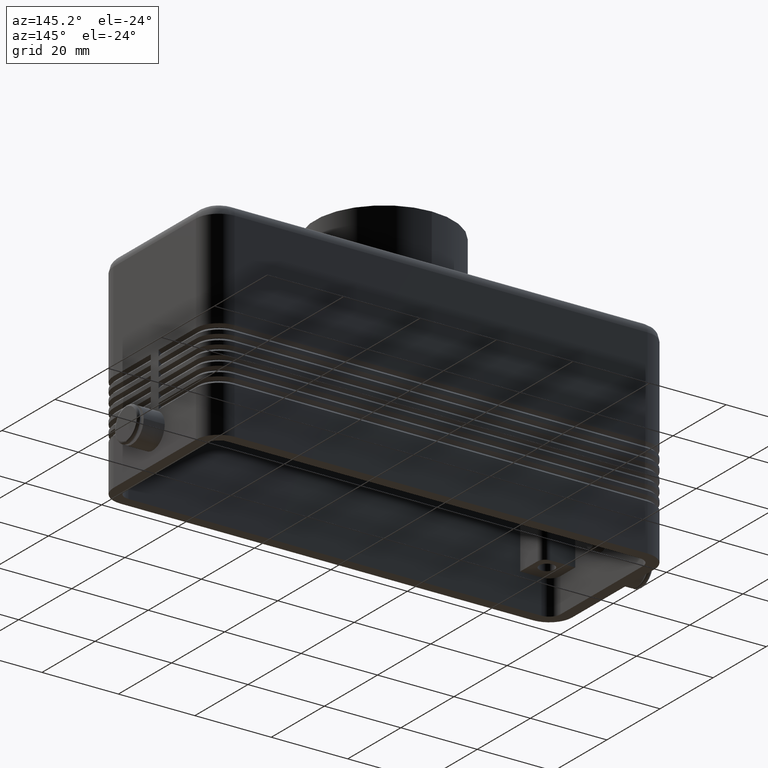
[diagram: clean part render]
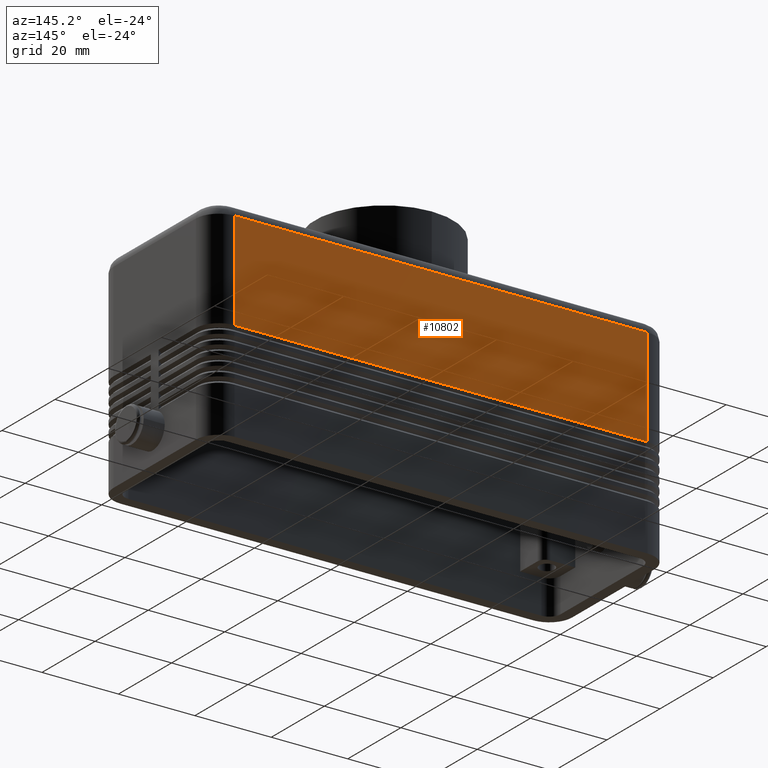
[diagram: same view with one face highlighted and labeled with its STEP entity id]
A machine part, auxiliary view. The second image highlights one B-rep face of the part: STEP entity #10802.
In plain terms, the highlighted planar face has unit normal (0, 1, 0).
Its self-contained STEP definition (entity closure, byte-faithful):
#2358=CARTESIAN_POINT('',(-53.999999999999986,21.500000000000000,52.000000000000014));
#2359=VERTEX_POINT('',#2358);
#2367=CARTESIAN_POINT('',(-53.999999999999986,21.500000000000000,26.250000000000004));
#2368=VERTEX_POINT('',#2367);
#2369=CARTESIAN_POINT('',(-53.999999999999986,21.500000000000000,52.000000000000014));
#2370=DIRECTION('',(0.0,0.0,-1.0));
#2371=VECTOR('',#2370,25.750000000000011);
#2372=LINE('',#2369,#2371);
#2373=EDGE_CURVE('',#2359,#2368,#2372,.T.);
#3191=CARTESIAN_POINT('',(54.0,21.500000000000000,26.250000000000021));
#3192=VERTEX_POINT('',#3191);
#4656=CARTESIAN_POINT('',(53.999999999999993,21.500000000000000,51.999999999999993));
#4657=VERTEX_POINT('',#4656);
#4658=CARTESIAN_POINT('',(54.0,21.500000000000000,26.250000000000021));
#4659=DIRECTION('',(0.0,0.0,1.0));
#4660=VECTOR('',#4659,25.749999999999972);
#4661=LINE('',#4658,#4660);
#4662=EDGE_CURVE('',#3192,#4657,#4661,.T.);
#4696=CARTESIAN_POINT('',(53.999999999999993,21.500000000000000,51.999999999999993));
#4697=DIRECTION('',(-1.0,0.0,0.0));
#4698=VECTOR('',#4697,107.999999999999970);
#4699=LINE('',#4696,#4698);
#4700=EDGE_CURVE('',#4657,#2359,#4699,.T.);
#8421=CARTESIAN_POINT('',(-53.999999999999986,21.500000000000000,26.250000000000004));
#8422=DIRECTION('',(1.0,0.0,0.0));
#8423=VECTOR('',#8422,107.999999999999990);
#8424=LINE('',#8421,#8423);
#8425=EDGE_CURVE('',#2368,#3192,#8424,.T.);
#10791=CARTESIAN_POINT('',(-1.110223E-015,21.500000000000000,27.499999999999993));
#10792=DIRECTION('',(0.0,1.0,0.0));
#10793=DIRECTION('',(0.0,0.0,1.0));
#10794=AXIS2_PLACEMENT_3D('',#10791,#10792,#10793);
#10795=PLANE('',#10794);
#10796=ORIENTED_EDGE('',*,*,#4700,.F.);
#10797=ORIENTED_EDGE('',*,*,#4662,.F.);
#10798=ORIENTED_EDGE('',*,*,#8425,.F.);
#10799=ORIENTED_EDGE('',*,*,#2373,.F.);
#10800=EDGE_LOOP('',(#10796,#10797,#10798,#10799));
#10801=FACE_OUTER_BOUND('',#10800,.T.);
#10802=ADVANCED_FACE('',(#10801),#10795,.T.);